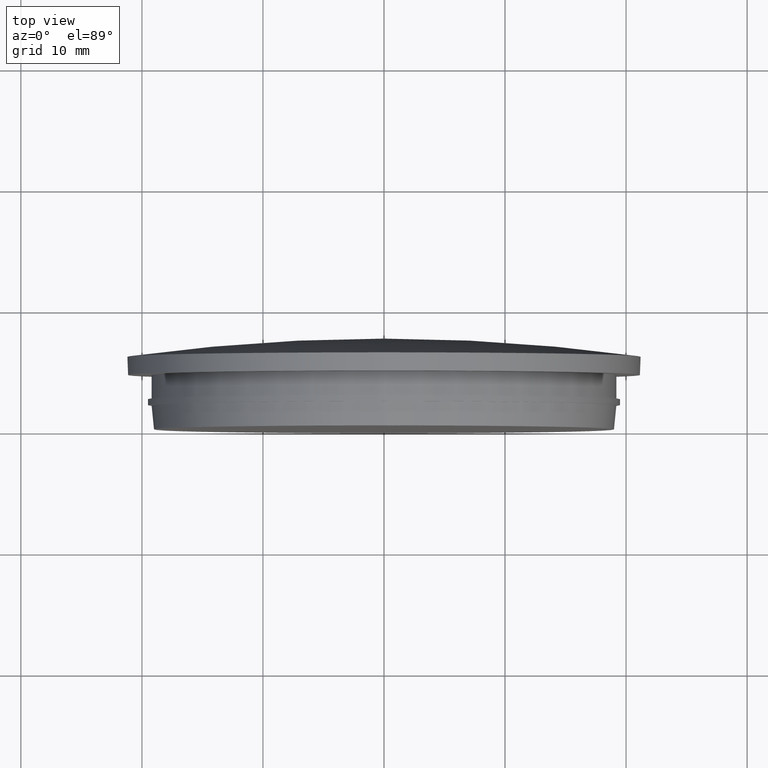
[diagram: clean part render]
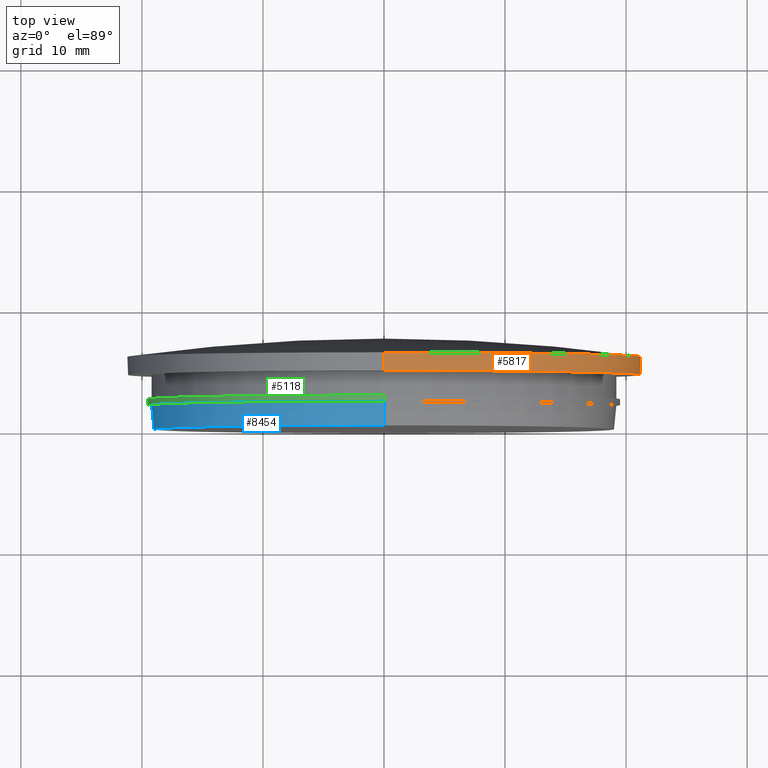
[diagram: same view with three faces highlighted in distinct colors, each labeled with its STEP entity id]
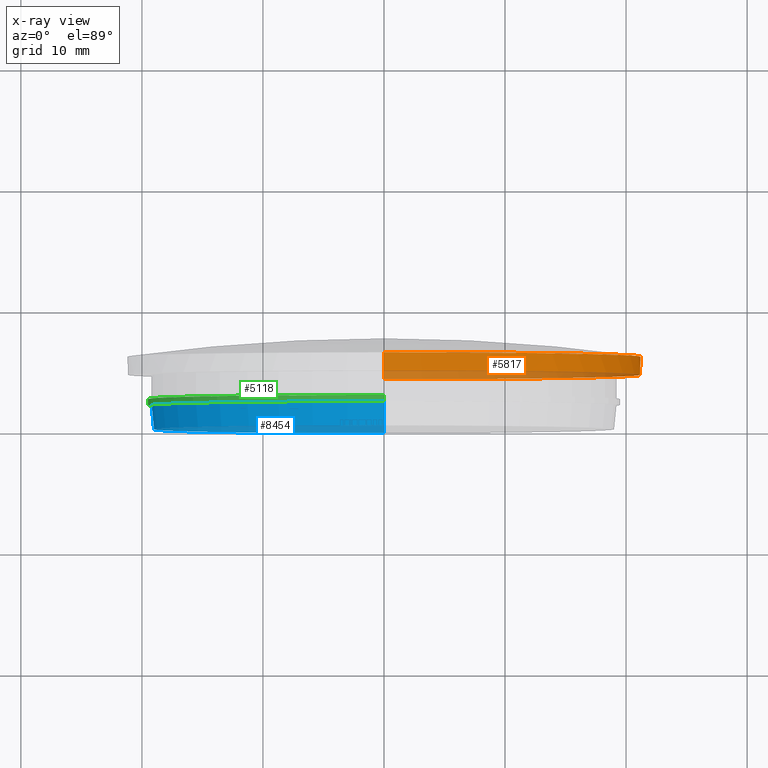
[diagram: x-ray of the same camera — body ghosted, the three highlighted faces saturated]
A machine part, top view with three faces highlighted in distinct colors.
The next image is the same camera in x-ray (body ghosted, the three faces saturated) — at least one of them is partly hidden behind the body in this view.
Their STEP definitions:

[orange] entity #5817 — the highlighted cylindrical surface (partial cylindrical patch) has radius 21.2 mm, axis along (-0, 1, -0).
#49 = ORIENTED_EDGE ( 'NONE', *, *, #2043, .F. ) ;
#391 = CARTESIAN_POINT ( 'NONE',  ( 2.596251214192388800E-015, 4.500000000000004400, -21.19999999999999900 ) ) ;
#1206 = LINE ( 'NONE', #11566, #1656 ) ;
#1308 = CARTESIAN_POINT ( 'NONE',  ( 2.596251214192388800E-015, 6.000000000000003600, -21.19999999999999900 ) ) ;
#1492 = VERTEX_POINT ( 'NONE', #2671 ) ;
#1564 = CARTESIAN_POINT ( 'NONE',  ( 0.0000000000000000000, 6.000000000000003600, 0.0000000000000000000 ) ) ;
#1619 = DIRECTION ( 'NONE',  ( -0.0000000000000000000, 1.000000000000000000, -0.0000000000000000000 ) ) ;
#1656 = VECTOR ( 'NONE', #12522, 1000.000000000000000 ) ;
#1702 = CARTESIAN_POINT ( 'NONE',  ( 0.0000000000000000000, 4.500000000000004400, 21.19999999999999900 ) ) ;
#1907 = DIRECTION ( 'NONE',  ( -0.0000000000000000000, 1.000000000000000000, -0.0000000000000000000 ) ) ;
#2041 = CARTESIAN_POINT ( 'NONE',  ( 0.0000000000000000000, 4.500000000000004400, 0.0000000000000000000 ) ) ;
#2043 = EDGE_CURVE ( 'NONE', #3321, #12149, #8177, .T. ) ;
#2119 = DIRECTION ( 'NONE',  ( 0.0000000000000000000, 0.0000000000000000000, 1.000000000000000000 ) ) ;
#2179 = DIRECTION ( 'NONE',  ( -0.0000000000000000000, 1.000000000000000000, -0.0000000000000000000 ) ) ;
#2390 = AXIS2_PLACEMENT_3D ( 'NONE', #1564, #4868, #6898 ) ;
#2671 = CARTESIAN_POINT ( 'NONE',  ( 0.0000000000000000000, 6.000000000000003600, 21.19999999999999900 ) ) ;
#2799 = ORIENTED_EDGE ( 'NONE', *, *, #3912, .F. ) ;
#2996 = VERTEX_POINT ( 'NONE', #1702 ) ;
#3321 = VERTEX_POINT ( 'NONE', #8518 ) ;
#3492 = CIRCLE ( 'NONE', #7551, 21.19999999999999900 ) ;
#3619 = EDGE_CURVE ( 'NONE', #2996, #5978, #3492, .T. ) ;
#3912 = EDGE_CURVE ( 'NONE', #2996, #1492, #6420, .T. ) ;
#4379 = CIRCLE ( 'NONE', #12523, 21.19999999999999900 ) ;
#4731 = ORIENTED_EDGE ( 'NONE', *, *, #8688, .T. ) ;
#4868 = DIRECTION ( 'NONE',  ( -0.0000000000000000000, 1.000000000000000000, -0.0000000000000000000 ) ) ;
#5817 = ADVANCED_FACE ( 'NONE', ( #10460 ), #10615, .T. ) ;
#5978 = VERTEX_POINT ( 'NONE', #391 ) ;
#6420 = LINE ( 'NONE', #9526, #11058 ) ;
#6740 = DIRECTION ( 'NONE',  ( 0.0000000000000000000, 0.0000000000000000000, 1.000000000000000000 ) ) ;
#6898 = DIRECTION ( 'NONE',  ( 0.0000000000000000000, 0.0000000000000000000, 1.000000000000000000 ) ) ;
#7551 = AXIS2_PLACEMENT_3D ( 'NONE', #2041, #2179, #11909 ) ;
#7751 = ORIENTED_EDGE ( 'NONE', *, *, #12255, .F. ) ;
#8177 = CIRCLE ( 'NONE', #2390, 21.19999999999999900 ) ;
#8445 = AXIS2_PLACEMENT_3D ( 'NONE', #12672, #1907, #6740 ) ;
#8518 = CARTESIAN_POINT ( 'NONE',  ( 21.20000000000003100, 6.000000000000004400, 0.0000000000000000000 ) ) ;
#8642 = EDGE_LOOP ( 'NONE', ( #11886, #4731, #49, #7751, #2799 ) ) ;
#8688 = EDGE_CURVE ( 'NONE', #5978, #12149, #1206, .T. ) ;
#9526 = CARTESIAN_POINT ( 'NONE',  ( 0.0000000000000000000, 4.500000000000000900, 21.19999999999999900 ) ) ;
#9921 = DIRECTION ( 'NONE',  ( -0.0000000000000000000, 1.000000000000000000, -0.0000000000000000000 ) ) ;
#9969 = CARTESIAN_POINT ( 'NONE',  ( 0.0000000000000000000, 6.000000000000003600, 0.0000000000000000000 ) ) ;
#10460 = FACE_OUTER_BOUND ( 'NONE', #8642, .T. ) ;
#10615 = CYLINDRICAL_SURFACE ( 'NONE', #8445, 21.19999999999999900 ) ;
#11058 = VECTOR ( 'NONE', #1619, 1000.000000000000000 ) ;
#11566 = CARTESIAN_POINT ( 'NONE',  ( 2.596251214192388800E-015, 4.500000000000000900, -21.19999999999999900 ) ) ;
#11886 = ORIENTED_EDGE ( 'NONE', *, *, #3619, .T. ) ;
#11909 = DIRECTION ( 'NONE',  ( 0.0000000000000000000, 0.0000000000000000000, 1.000000000000000000 ) ) ;
#12149 = VERTEX_POINT ( 'NONE', #1308 ) ;
#12255 = EDGE_CURVE ( 'NONE', #1492, #3321, #4379, .T. ) ;
#12522 = DIRECTION ( 'NONE',  ( -0.0000000000000000000, 1.000000000000000000, -0.0000000000000000000 ) ) ;
#12523 = AXIS2_PLACEMENT_3D ( 'NONE', #9969, #9921, #2119 ) ;
#12672 = CARTESIAN_POINT ( 'NONE',  ( 0.0000000000000000000, 4.500000000000000900, 0.0000000000000000000 ) ) ;

[blue] entity #8454 — the highlighted conical surface has half-angle 5.711 deg.
#208 = ORIENTED_EDGE ( 'NONE', *, *, #10175, .F. ) ;
#282 = CARTESIAN_POINT ( 'NONE',  ( 0.0000000000000000000, 2.000000000000000000, 19.19999999999999600 ) ) ;
#906 = CARTESIAN_POINT ( 'NONE',  ( 0.0000000000000000000, 2.000000000000000000, 0.0000000000000000000 ) ) ;
#1103 = DIRECTION ( 'NONE',  ( 0.0000000000000000000, 0.0000000000000000000, 1.000000000000000000 ) ) ;
#1188 = EDGE_LOOP ( 'NONE', ( #208, #5473, #5632, #6452 ) ) ;
#1365 = EDGE_CURVE ( 'NONE', #12387, #3820, #7475, .T. ) ;
#1503 = CONICAL_SURFACE ( 'NONE', #3566, 19.19999999999999600, 0.09966865249115967900 ) ;
#1735 = DIRECTION ( 'NONE',  ( 0.0000000000000000000, 0.0000000000000000000, 1.000000000000000000 ) ) ;
#2415 = CARTESIAN_POINT ( 'NONE',  ( 0.0000000000000000000, 0.0000000000000000000, 19.00000000000000000 ) ) ;
#2791 = EDGE_CURVE ( 'NONE', #3820, #6947, #11250, .T. ) ;
#3067 = FACE_OUTER_BOUND ( 'NONE', #1188, .T. ) ;
#3566 = AXIS2_PLACEMENT_3D ( 'NONE', #4059, #11979, #1103 ) ;
#3820 = VERTEX_POINT ( 'NONE', #12217 ) ;
#4059 = CARTESIAN_POINT ( 'NONE',  ( 0.0000000000000000000, 2.000000000000000000, 0.0000000000000000000 ) ) ;
#5473 = ORIENTED_EDGE ( 'NONE', *, *, #9290, .T. ) ;
#5632 = ORIENTED_EDGE ( 'NONE', *, *, #1365, .T. ) ;
#5648 = VECTOR ( 'NONE', #11488, 1000.000000000000000 ) ;
#5695 = CARTESIAN_POINT ( 'NONE',  ( 2.351321854362917700E-015, 2.000000000000000000, -19.19999999999999600 ) ) ;
#6287 = LINE ( 'NONE', #5695, #5648 ) ;
#6452 = ORIENTED_EDGE ( 'NONE', *, *, #2791, .T. ) ;
#6947 = VERTEX_POINT ( 'NONE', #8604 ) ;
#7475 = LINE ( 'NONE', #282, #12148 ) ;
#7571 = CARTESIAN_POINT ( 'NONE',  ( 0.0000000000000000000, 0.0000000000000000000, 0.0000000000000000000 ) ) ;
#7609 = AXIS2_PLACEMENT_3D ( 'NONE', #7571, #8697, #1735 ) ;
#7955 = DIRECTION ( 'NONE',  ( -0.0000000000000000000, -1.000000000000000000, -0.0000000000000000000 ) ) ;
#8128 = VERTEX_POINT ( 'NONE', #10097 ) ;
#8454 = ADVANCED_FACE ( 'NONE', ( #3067 ), #1503, .T. ) ;
#8604 = CARTESIAN_POINT ( 'NONE',  ( 2.351321854362917700E-015, 2.000000000000000000, -19.19999999999999600 ) ) ;
#8697 = DIRECTION ( 'NONE',  ( 0.0000000000000000000, 1.000000000000000000, 0.0000000000000000000 ) ) ;
#9290 = EDGE_CURVE ( 'NONE', #8128, #12387, #10755, .T. ) ;
#9859 = AXIS2_PLACEMENT_3D ( 'NONE', #906, #7955, #10940 ) ;
#10097 = CARTESIAN_POINT ( 'NONE',  ( 2.339075386371444300E-015, 0.0000000000000000000, -19.00000000000000000 ) ) ;
#10175 = EDGE_CURVE ( 'NONE', #8128, #6947, #6287, .T. ) ;
#10755 = CIRCLE ( 'NONE', #7609, 19.00000000000000000 ) ;
#10940 = DIRECTION ( 'NONE',  ( 0.0000000000000000000, 0.0000000000000000000, 1.000000000000000000 ) ) ;
#11250 = CIRCLE ( 'NONE', #9859, 19.19999999999999600 ) ;
#11488 = DIRECTION ( 'NONE',  ( 1.218569110023210800E-017, 0.9950371902099893800, -0.09950371902099659800 ) ) ;
#11979 = DIRECTION ( 'NONE',  ( 0.0000000000000000000, 1.000000000000000000, 0.0000000000000000000 ) ) ;
#12079 = DIRECTION ( 'NONE',  ( 0.0000000000000000000, 0.9950371902099893800, 0.09950371902099659800 ) ) ;
#12148 = VECTOR ( 'NONE', #12079, 1000.000000000000000 ) ;
#12217 = CARTESIAN_POINT ( 'NONE',  ( 0.0000000000000000000, 2.000000000000000000, 19.19999999999999600 ) ) ;
#12387 = VERTEX_POINT ( 'NONE', #2415 ) ;

[green] entity #5118 — the highlighted cylindrical surface (partial cylindrical patch) has radius 19.5 mm, axis along (-0, -1, -0).
#977 = DIRECTION ( 'NONE',  ( -0.0000000000000000000, -1.000000000000000000, -0.0000000000000000000 ) ) ;
#979 = CARTESIAN_POINT ( 'NONE',  ( 2.388061258337338900E-015, 2.000000000000000000, 19.50000000000000000 ) ) ;
#1062 = DIRECTION ( 'NONE',  ( 0.0000000000000000000, 0.0000000000000000000, 1.000000000000000000 ) ) ;
#1231 = CARTESIAN_POINT ( 'NONE',  ( 0.0000000000000000000, 2.500000000000000000, 0.0000000000000000000 ) ) ;
#1697 = FACE_OUTER_BOUND ( 'NONE', #11695, .T. ) ;
#1960 = AXIS2_PLACEMENT_3D ( 'NONE', #1231, #2276, #7071 ) ;
#2276 = DIRECTION ( 'NONE',  ( 0.0000000000000000000, 1.000000000000000000, 0.0000000000000000000 ) ) ;
#2731 = VERTEX_POINT ( 'NONE', #10666 ) ;
#3301 = CARTESIAN_POINT ( 'NONE',  ( 2.388061258337338900E-015, 2.500000000000000000, 19.50000000000000000 ) ) ;
#3365 = CARTESIAN_POINT ( 'NONE',  ( 2.388061258337338900E-015, 2.500000000000000000, 19.50000000000000000 ) ) ;
#3379 = DIRECTION ( 'NONE',  ( -0.0000000000000000000, -1.000000000000000000, -0.0000000000000000000 ) ) ;
#3994 = LINE ( 'NONE', #3301, #9077 ) ;
#5118 = ADVANCED_FACE ( 'NONE', ( #1697 ), #10009, .T. ) ;
#5501 = EDGE_CURVE ( 'NONE', #9597, #8261, #3994, .T. ) ;
#5937 = ORIENTED_EDGE ( 'NONE', *, *, #10236, .T. ) ;
#6585 = ORIENTED_EDGE ( 'NONE', *, *, #9527, .F. ) ;
#7071 = DIRECTION ( 'NONE',  ( 0.0000000000000000000, 0.0000000000000000000, 1.000000000000000000 ) ) ;
#7098 = AXIS2_PLACEMENT_3D ( 'NONE', #7898, #7940, #1062 ) ;
#7796 = ORIENTED_EDGE ( 'NONE', *, *, #5501, .F. ) ;
#7852 = VERTEX_POINT ( 'NONE', #11252 ) ;
#7855 = CARTESIAN_POINT ( 'NONE',  ( 0.0000000000000000000, 2.500000000000000000, 0.0000000000000000000 ) ) ;
#7898 = CARTESIAN_POINT ( 'NONE',  ( 0.0000000000000000000, 2.000000000000000000, 0.0000000000000000000 ) ) ;
#7940 = DIRECTION ( 'NONE',  ( 0.0000000000000000000, 1.000000000000000000, 0.0000000000000000000 ) ) ;
#8261 = VERTEX_POINT ( 'NONE', #979 ) ;
#8280 = LINE ( 'NONE', #8753, #12323 ) ;
#8733 = CIRCLE ( 'NONE', #7098, 19.50000000000000000 ) ;
#8753 = CARTESIAN_POINT ( 'NONE',  ( 0.0000000000000000000, 2.500000000000000000, -19.50000000000000000 ) ) ;
#9077 = VECTOR ( 'NONE', #3379, 1000.000000000000000 ) ;
#9122 = AXIS2_PLACEMENT_3D ( 'NONE', #7855, #11799, #12705 ) ;
#9527 = EDGE_CURVE ( 'NONE', #2731, #9597, #12331, .T. ) ;
#9597 = VERTEX_POINT ( 'NONE', #3365 ) ;
#10009 = CYLINDRICAL_SURFACE ( 'NONE', #9122, 19.50000000000000000 ) ;
#10236 = EDGE_CURVE ( 'NONE', #2731, #7852, #8280, .T. ) ;
#10272 = ORIENTED_EDGE ( 'NONE', *, *, #10294, .T. ) ;
#10294 = EDGE_CURVE ( 'NONE', #7852, #8261, #8733, .T. ) ;
#10666 = CARTESIAN_POINT ( 'NONE',  ( 0.0000000000000000000, 2.500000000000000000, -19.50000000000000000 ) ) ;
#11252 = CARTESIAN_POINT ( 'NONE',  ( 0.0000000000000000000, 2.000000000000000000, -19.50000000000000000 ) ) ;
#11695 = EDGE_LOOP ( 'NONE', ( #7796, #6585, #5937, #10272 ) ) ;
#11799 = DIRECTION ( 'NONE',  ( -0.0000000000000000000, -1.000000000000000000, -0.0000000000000000000 ) ) ;
#12323 = VECTOR ( 'NONE', #977, 1000.000000000000000 ) ;
#12331 = CIRCLE ( 'NONE', #1960, 19.50000000000000000 ) ;
#12705 = DIRECTION ( 'NONE',  ( 0.0000000000000000000, 0.0000000000000000000, -1.000000000000000000 ) ) ;